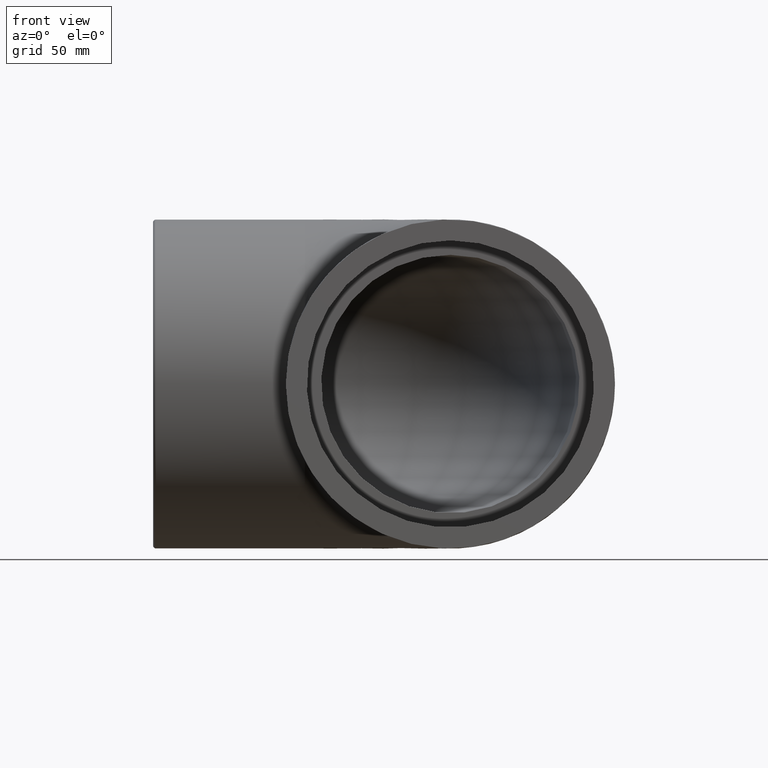
[diagram: clean part render]
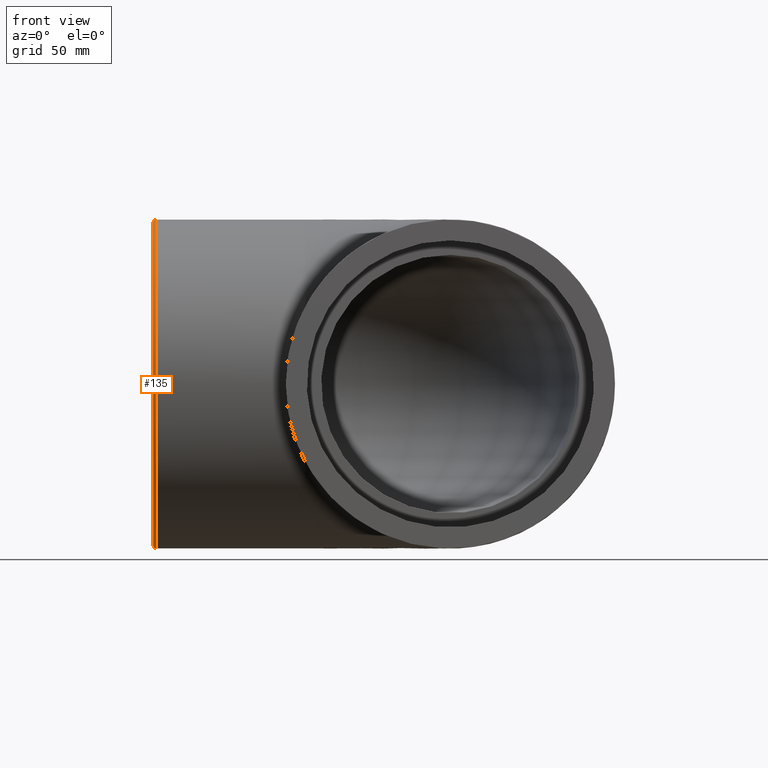
[diagram: same view with one face highlighted and labeled with its STEP entity id]
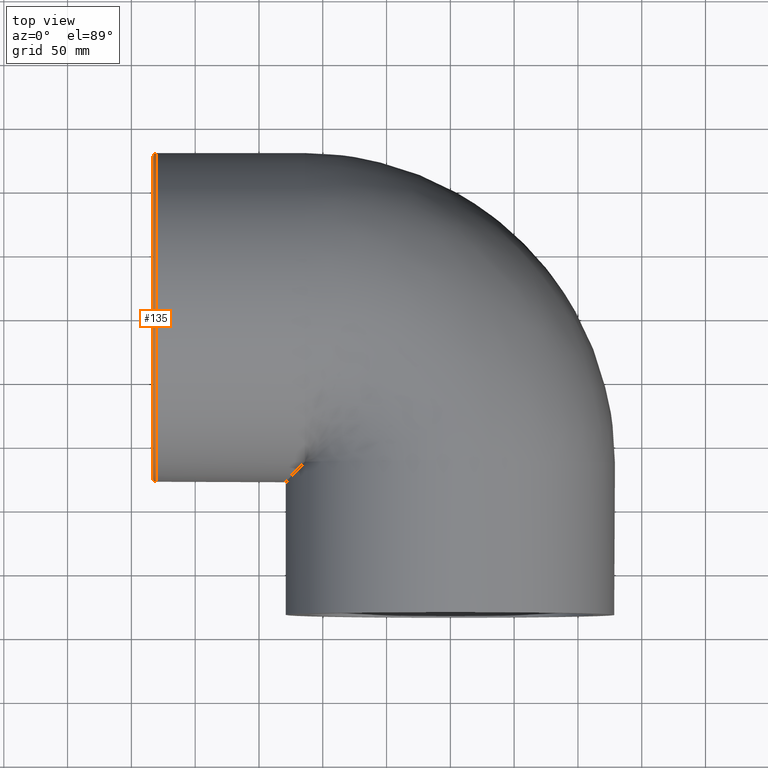
[diagram: same view with one face highlighted and labeled with its STEP entity id]
A machine part, front view. The second image highlights one B-rep face of the part: STEP entity #135.
A second angle (top view) of the same face is appended — the face is thin or edge-on in the first view.
In plain terms, the highlighted toroidal blend (fillet) surface has major radius 126.75 mm and minor (blend) radius 2.25 mm.
Its self-contained STEP definition (entity closure, byte-faithful):
#32=FACE_BOUND('',#62,.T.);
#43=FACE_OUTER_BOUND('',#61,.T.);
#61=EDGE_LOOP('',(#118));
#62=EDGE_LOOP('',(#119));
#76=CIRCLE('',#158,126.75);
#77=CIRCLE('',#159,129.);
#87=VERTEX_POINT('',#263);
#88=VERTEX_POINT('',#265);
#99=EDGE_CURVE('',#87,#87,#76,.T.);
#100=EDGE_CURVE('',#88,#88,#77,.T.);
#118=ORIENTED_EDGE('',*,*,#99,.T.);
#119=ORIENTED_EDGE('',*,*,#100,.T.);
#126=TOROIDAL_SURFACE('',#157,126.75,2.25);
#135=ADVANCED_FACE('',(#43,#32),#126,.T.);
#157=AXIS2_PLACEMENT_3D('',#262,#198,#199);
#158=AXIS2_PLACEMENT_3D('',#264,#200,#201);
#159=AXIS2_PLACEMENT_3D('',#266,#202,#203);
#198=DIRECTION('center_axis',(1.,0.,0.));
#199=DIRECTION('ref_axis',(0.,0.,-1.));
#200=DIRECTION('center_axis',(1.,0.,0.));
#201=DIRECTION('ref_axis',(0.,-1.,1.83697019872103E-16));
#202=DIRECTION('center_axis',(-1.,0.,0.));
#203=DIRECTION('ref_axis',(0.,-1.,1.83697019872103E-16));
#262=CARTESIAN_POINT('Origin',(-230.75,0.,0.));
#263=CARTESIAN_POINT('',(-233.,126.75,-7.76119908959635E-15));
#264=CARTESIAN_POINT('Origin',(-233.,0.,0.));
#265=CARTESIAN_POINT('',(-230.75,129.,-3.94948592725021E-14));
#266=CARTESIAN_POINT('Origin',(-230.75,0.,0.));